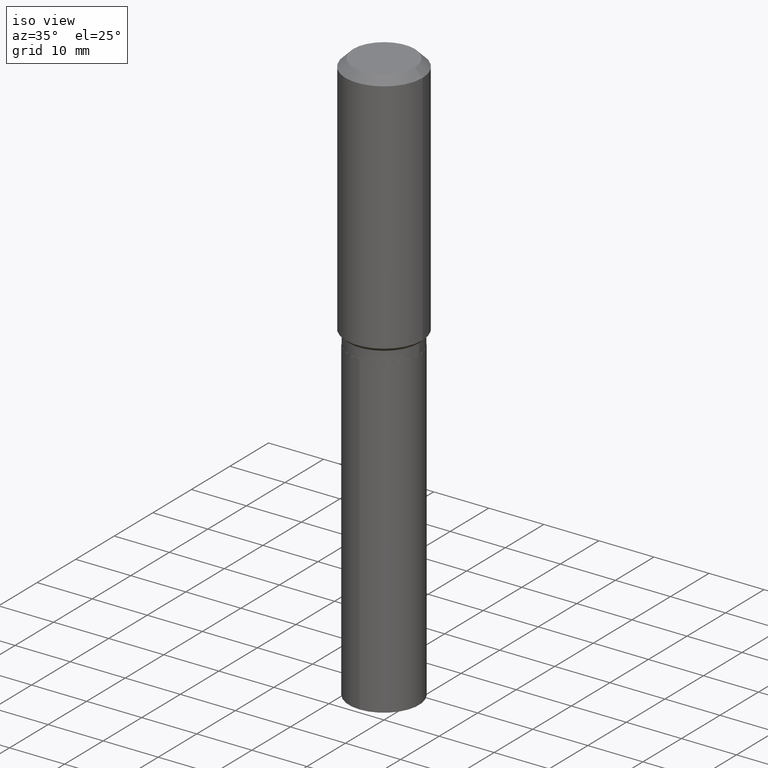
[diagram: clean part render]
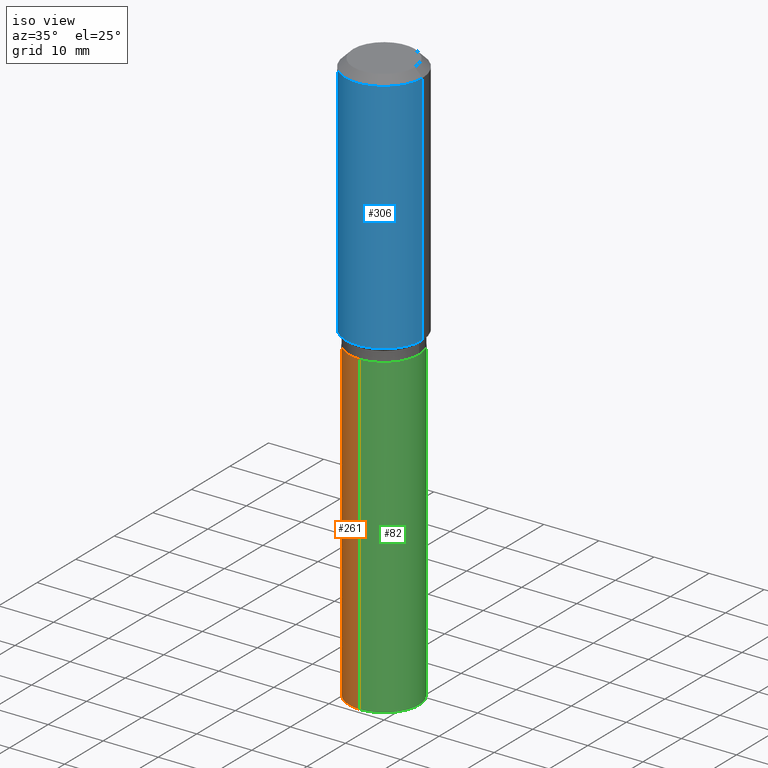
[diagram: same view with three faces highlighted in distinct colors, each labeled with its STEP entity id]
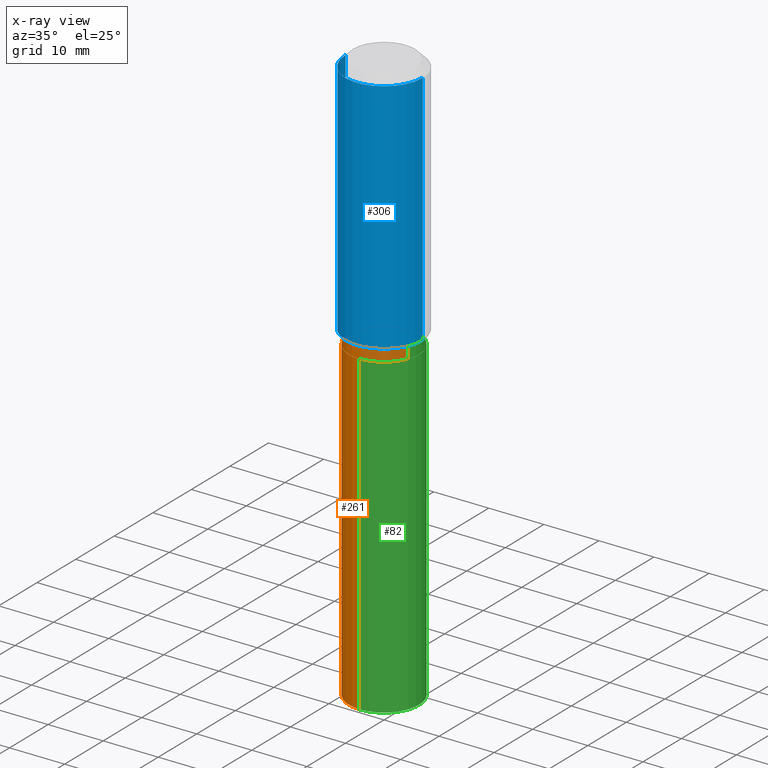
[diagram: x-ray of the same camera — body ghosted, the three highlighted faces saturated]
A machine part, iso view with three faces highlighted in distinct colors.
The next image is the same camera in x-ray (body ghosted, the three faces saturated) — at least one of them is partly hidden behind the body in this view.
Their STEP definitions:

[orange] entity #261 — the highlighted cylindrical surface (partial cylindrical patch) has radius 6.35 mm, axis along (-0, 0, 1).
#7 = CIRCLE ( 'NONE', #136, 0.2500000000000000000 ) ;
#15 = DIRECTION ( 'NONE',  ( -2.445311511175715236E-29, 3.491706594249313173E-15, 1.000000000000000000 ) ) ;
#44 = ORIENTED_EDGE ( 'NONE', *, *, #372, .T. ) ;
#53 = ORIENTED_EDGE ( 'NONE', *, *, #330, .T. ) ;
#86 = DIRECTION ( 'NONE',  ( -2.445311511175715236E-29, 3.491706594249313173E-15, 1.000000000000000000 ) ) ;
#98 = VERTEX_POINT ( 'NONE', #369 ) ;
#107 = CIRCLE ( 'NONE', #314, 0.2500000000000000000 ) ;
#129 = DIRECTION ( 'NONE',  ( -6.982962677686265922E-15, -1.000000000000000000, 3.278217592397115862E-15 ) ) ;
#136 = AXIS2_PLACEMENT_3D ( 'NONE', #264, #15, #315 ) ;
#149 = ORIENTED_EDGE ( 'NONE', *, *, #299, .F. ) ;
#168 = CARTESIAN_POINT ( 'NONE',  ( 1.776356839400351044E-15, 0.2499999999999935052, -1.850400000000001155 ) ) ;
#206 = VECTOR ( 'NONE', #371, 39.37007874015748143 ) ;
#207 = CARTESIAN_POINT ( 'NONE',  ( -1.745740669421521318E-15, -0.2500000000000064393, -1.850399999999999379 ) ) ;
#223 = DIRECTION ( 'NONE',  ( -2.445311511175715516E-29, 3.491706594249313568E-15, 1.000000000000000000 ) ) ;
#237 = ORIENTED_EDGE ( 'NONE', *, *, #403, .F. ) ;
#258 = VECTOR ( 'NONE', #223, 39.37007874015748143 ) ;
#261 = ADVANCED_FACE ( 'NONE', ( #380 ), #465, .T. ) ;
#264 = CARTESIAN_POINT ( 'NONE',  ( 4.525095478964977394E-29, -6.460637069395357576E-15, -1.850400000000000267 ) ) ;
#268 = LINE ( 'NONE', #462, #206 ) ;
#269 = CARTESIAN_POINT ( 'NONE',  ( 1.006060187556577327E-28, -1.436489143501894089E-14, -4.114122381096264824 ) ) ;
#279 = EDGE_LOOP ( 'NONE', ( #149, #53, #44, #237 ) ) ;
#297 = VERTEX_POINT ( 'NONE', #483 ) ;
#299 = EDGE_CURVE ( 'NONE', #98, #432, #268, .T. ) ;
#314 = AXIS2_PLACEMENT_3D ( 'NONE', #269, #471, #391 ) ;
#315 = DIRECTION ( 'NONE',  ( -6.982962677686265922E-15, -1.000000000000000000, 3.278217592397115862E-15 ) ) ;
#330 = EDGE_CURVE ( 'NONE', #98, #297, #107, .T. ) ;
#353 = LINE ( 'NONE', #417, #258 ) ;
#369 = CARTESIAN_POINT ( 'NONE',  ( 1.776356839400351044E-15, 0.2499999999999856504, -4.114122381096266601 ) ) ;
#371 = DIRECTION ( 'NONE',  ( -2.445311511175715516E-29, 3.491706594249313568E-15, 1.000000000000000000 ) ) ;
#372 = EDGE_CURVE ( 'NONE', #297, #467, #353, .T. ) ;
#380 = FACE_OUTER_BOUND ( 'NONE', #279, .T. ) ;
#391 = DIRECTION ( 'NONE',  ( -6.982962677686265922E-15, -1.000000000000000000, 4.370956789862821150E-15 ) ) ;
#403 = EDGE_CURVE ( 'NONE', #432, #467, #7, .T. ) ;
#417 = CARTESIAN_POINT ( 'NONE',  ( -1.745740669421521318E-15, -0.2500000000000064393, -1.850399999999999823 ) ) ;
#423 = CARTESIAN_POINT ( 'NONE',  ( 4.525095478964977954E-29, -6.460637069395358365E-15, -1.850400000000000489 ) ) ;
#432 = VERTEX_POINT ( 'NONE', #168 ) ;
#462 = CARTESIAN_POINT ( 'NONE',  ( 1.776356839400295430E-15, 0.2499999999999935330, -1.850400000000001377 ) ) ;
#465 = CYLINDRICAL_SURFACE ( 'NONE', #474, 0.2500000000000000000 ) ;
#467 = VERTEX_POINT ( 'NONE', #207 ) ;
#471 = DIRECTION ( 'NONE',  ( -2.445311511175715236E-29, 3.491706594249313173E-15, 1.000000000000000000 ) ) ;
#474 = AXIS2_PLACEMENT_3D ( 'NONE', #423, #86, #129 ) ;
#483 = CARTESIAN_POINT ( 'NONE',  ( -1.745740669421465703E-15, -0.2500000000000143774, -4.114122381096263936 ) ) ;

[blue] entity #306 — the highlighted cylindrical surface (partial cylindrical patch) has radius 7.0002 mm, axis along (-0, 0, 1).
#4 = AXIS2_PLACEMENT_3D ( 'NONE', #307, #468, #281 ) ;
#27 = CARTESIAN_POINT ( 'NONE',  ( 0.2756000000000001227, -1.924504513970336137E-15, 1.343874319409360548E-29 ) ) ;
#29 = VECTOR ( 'NONE', #488, 39.37007874015748143 ) ;
#31 = LINE ( 'NONE', #75, #160 ) ;
#51 = VERTEX_POINT ( 'NONE', #358 ) ;
#59 = CARTESIAN_POINT ( 'NONE',  ( -0.2756000000000000116, -1.192666469297548903E-15, -0.05512000000000035621 ) ) ;
#65 = VERTEX_POINT ( 'NONE', #111 ) ;
#68 = EDGE_LOOP ( 'NONE', ( #481, #233, #284, #342 ) ) ;
#75 = CARTESIAN_POINT ( 'NONE',  ( -0.2756000000000001227, 1.958255779754836984E-15, -1.355658510874252567E-29 ) ) ;
#111 = CARTESIAN_POINT ( 'NONE',  ( 0.2756000000000002337, -8.033898560678073390E-15, -1.749800000000000244 ) ) ;
#139 = FACE_OUTER_BOUND ( 'NONE', #68, .T. ) ;
#140 = VERTEX_POINT ( 'NONE', #198 ) ;
#141 = CYLINDRICAL_SURFACE ( 'NONE', #254, 0.2756000000000001227 ) ;
#145 = EDGE_CURVE ( 'NONE', #140, #65, #392, .T. ) ;
#151 = AXIS2_PLACEMENT_3D ( 'NONE', #235, #169, #336 ) ;
#155 = DIRECTION ( 'NONE',  ( -2.445468806185136877E-29, 3.491481338843145188E-15, 1.000000000000000000 ) ) ;
#160 = VECTOR ( 'NONE', #155, 39.37007874015748143 ) ;
#169 = DIRECTION ( 'NONE',  ( -2.445468806185136597E-29, 3.491481338843145583E-15, 1.000000000000000000 ) ) ;
#170 = EDGE_CURVE ( 'NONE', #65, #51, #400, .T. ) ;
#198 = CARTESIAN_POINT ( 'NONE',  ( -0.2756000000000002337, -4.151138266952899480E-15, -1.749800000000000244 ) ) ;
#220 = EDGE_CURVE ( 'NONE', #140, #458, #31, .T. ) ;
#230 = DIRECTION ( 'NONE',  ( 1.000000000000000000, -6.982962677686267499E-15, 4.876176775795935793E-29 ) ) ;
#233 = ORIENTED_EDGE ( 'NONE', *, *, #145, .T. ) ;
#235 = CARTESIAN_POINT ( 'NONE',  ( 4.279081317062752596E-29, -6.109394046707736858E-15, -1.749800000000000244 ) ) ;
#254 = AXIS2_PLACEMENT_3D ( 'NONE', #420, #310, #230 ) ;
#281 = DIRECTION ( 'NONE',  ( 1.000000000000000000, -6.982962677686265922E-15, 0.000000000000000000 ) ) ;
#284 = ORIENTED_EDGE ( 'NONE', *, *, #170, .T. ) ;
#290 = CIRCLE ( 'NONE', #4, 0.2756000000000000116 ) ;
#306 = ADVANCED_FACE ( 'NONE', ( #139 ), #141, .T. ) ;
#307 = CARTESIAN_POINT ( 'NONE',  ( 1.347942405969256063E-30, -1.924504513970354330E-16, -0.05512000000000035621 ) ) ;
#310 = DIRECTION ( 'NONE',  ( -2.445468806185136597E-29, 3.491481338843145583E-15, 1.000000000000000000 ) ) ;
#336 = DIRECTION ( 'NONE',  ( 1.000000000000000000, -6.982962677686267499E-15, 0.000000000000000000 ) ) ;
#342 = ORIENTED_EDGE ( 'NONE', *, *, #485, .F. ) ;
#358 = CARTESIAN_POINT ( 'NONE',  ( 0.2756000000000000116, -2.116954965367370658E-15, -0.05512000000000035621 ) ) ;
#392 = CIRCLE ( 'NONE', #151, 0.2756000000000002337 ) ;
#400 = LINE ( 'NONE', #27, #29 ) ;
#420 = CARTESIAN_POINT ( 'NONE',  ( 0.000000000000000000, 0.000000000000000000, 0.000000000000000000 ) ) ;
#458 = VERTEX_POINT ( 'NONE', #59 ) ;
#468 = DIRECTION ( 'NONE',  ( -2.445468806185136597E-29, 3.491481338843145583E-15, 1.000000000000000000 ) ) ;
#481 = ORIENTED_EDGE ( 'NONE', *, *, #220, .F. ) ;
#485 = EDGE_CURVE ( 'NONE', #458, #51, #290, .T. ) ;
#488 = DIRECTION ( 'NONE',  ( -2.445468806185136877E-29, 3.491481338843145188E-15, 1.000000000000000000 ) ) ;

[green] entity #82 — the highlighted cylindrical surface (partial cylindrical patch) has radius 6.35 mm, axis along (-0, 0, 1).
#2 = FACE_OUTER_BOUND ( 'NONE', #81, .T. ) ;
#25 = EDGE_CURVE ( 'NONE', #467, #432, #253, .T. ) ;
#35 = AXIS2_PLACEMENT_3D ( 'NONE', #445, #104, #351 ) ;
#69 = DIRECTION ( 'NONE',  ( -6.982962677686265922E-15, -1.000000000000000000, 4.370956789862821150E-15 ) ) ;
#81 = EDGE_LOOP ( 'NONE', ( #212, #418, #436, #333 ) ) ;
#82 = ADVANCED_FACE ( 'NONE', ( #2 ), #153, .T. ) ;
#98 = VERTEX_POINT ( 'NONE', #369 ) ;
#104 = DIRECTION ( 'NONE',  ( -2.445311511175715236E-29, 3.491706594249313173E-15, 1.000000000000000000 ) ) ;
#153 = CYLINDRICAL_SURFACE ( 'NONE', #295, 0.2500000000000000000 ) ;
#157 = EDGE_CURVE ( 'NONE', #297, #98, #332, .T. ) ;
#168 = CARTESIAN_POINT ( 'NONE',  ( 1.776356839400351044E-15, 0.2499999999999935052, -1.850400000000001155 ) ) ;
#189 = CARTESIAN_POINT ( 'NONE',  ( 4.525095478964977954E-29, -6.460637069395358365E-15, -1.850400000000000489 ) ) ;
#206 = VECTOR ( 'NONE', #371, 39.37007874015748143 ) ;
#207 = CARTESIAN_POINT ( 'NONE',  ( -1.745740669421521318E-15, -0.2500000000000064393, -1.850399999999999379 ) ) ;
#212 = ORIENTED_EDGE ( 'NONE', *, *, #157, .T. ) ;
#223 = DIRECTION ( 'NONE',  ( -2.445311511175715516E-29, 3.491706594249313568E-15, 1.000000000000000000 ) ) ;
#226 = DIRECTION ( 'NONE',  ( -2.445311511175715236E-29, 3.491706594249313173E-15, 1.000000000000000000 ) ) ;
#253 = CIRCLE ( 'NONE', #35, 0.2500000000000000000 ) ;
#257 = AXIS2_PLACEMENT_3D ( 'NONE', #362, #404, #69 ) ;
#258 = VECTOR ( 'NONE', #223, 39.37007874015748143 ) ;
#262 = DIRECTION ( 'NONE',  ( -6.982962677686265922E-15, -1.000000000000000000, 3.278217592397115862E-15 ) ) ;
#268 = LINE ( 'NONE', #462, #206 ) ;
#295 = AXIS2_PLACEMENT_3D ( 'NONE', #189, #226, #262 ) ;
#297 = VERTEX_POINT ( 'NONE', #483 ) ;
#299 = EDGE_CURVE ( 'NONE', #98, #432, #268, .T. ) ;
#332 = CIRCLE ( 'NONE', #257, 0.2500000000000000000 ) ;
#333 = ORIENTED_EDGE ( 'NONE', *, *, #372, .F. ) ;
#351 = DIRECTION ( 'NONE',  ( -6.982962677686265922E-15, -1.000000000000000000, 3.278217592397115862E-15 ) ) ;
#353 = LINE ( 'NONE', #417, #258 ) ;
#362 = CARTESIAN_POINT ( 'NONE',  ( 1.006060187556577327E-28, -1.436489143501894089E-14, -4.114122381096264824 ) ) ;
#369 = CARTESIAN_POINT ( 'NONE',  ( 1.776356839400351044E-15, 0.2499999999999856504, -4.114122381096266601 ) ) ;
#371 = DIRECTION ( 'NONE',  ( -2.445311511175715516E-29, 3.491706594249313568E-15, 1.000000000000000000 ) ) ;
#372 = EDGE_CURVE ( 'NONE', #297, #467, #353, .T. ) ;
#404 = DIRECTION ( 'NONE',  ( -2.445311511175715236E-29, 3.491706594249313173E-15, 1.000000000000000000 ) ) ;
#417 = CARTESIAN_POINT ( 'NONE',  ( -1.745740669421521318E-15, -0.2500000000000064393, -1.850399999999999823 ) ) ;
#418 = ORIENTED_EDGE ( 'NONE', *, *, #299, .T. ) ;
#432 = VERTEX_POINT ( 'NONE', #168 ) ;
#436 = ORIENTED_EDGE ( 'NONE', *, *, #25, .F. ) ;
#445 = CARTESIAN_POINT ( 'NONE',  ( 4.525095478964977394E-29, -6.460637069395357576E-15, -1.850400000000000267 ) ) ;
#462 = CARTESIAN_POINT ( 'NONE',  ( 1.776356839400295430E-15, 0.2499999999999935330, -1.850400000000001377 ) ) ;
#467 = VERTEX_POINT ( 'NONE', #207 ) ;
#483 = CARTESIAN_POINT ( 'NONE',  ( -1.745740669421465703E-15, -0.2500000000000143774, -4.114122381096263936 ) ) ;